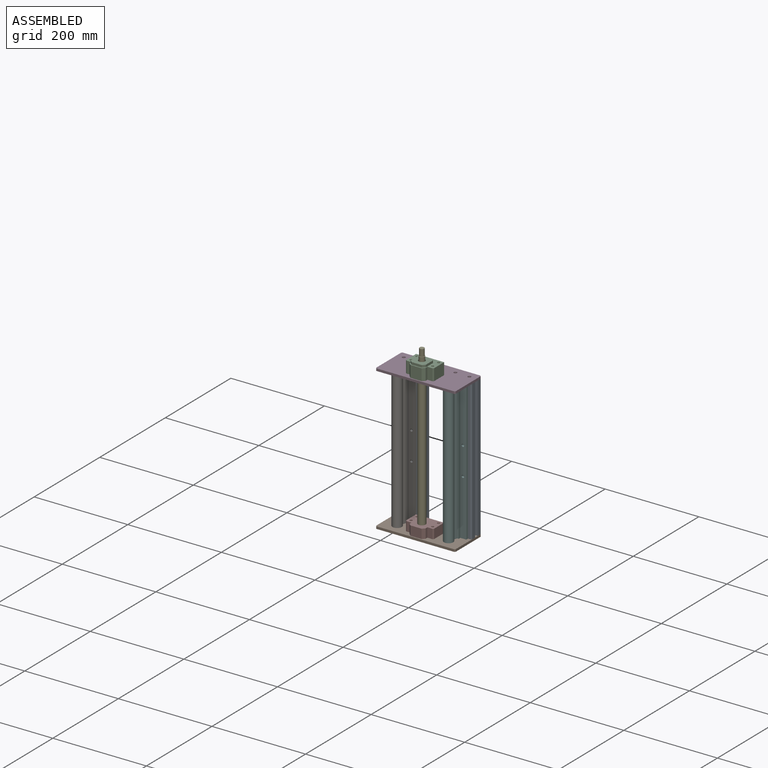
[diagram: assembled view]
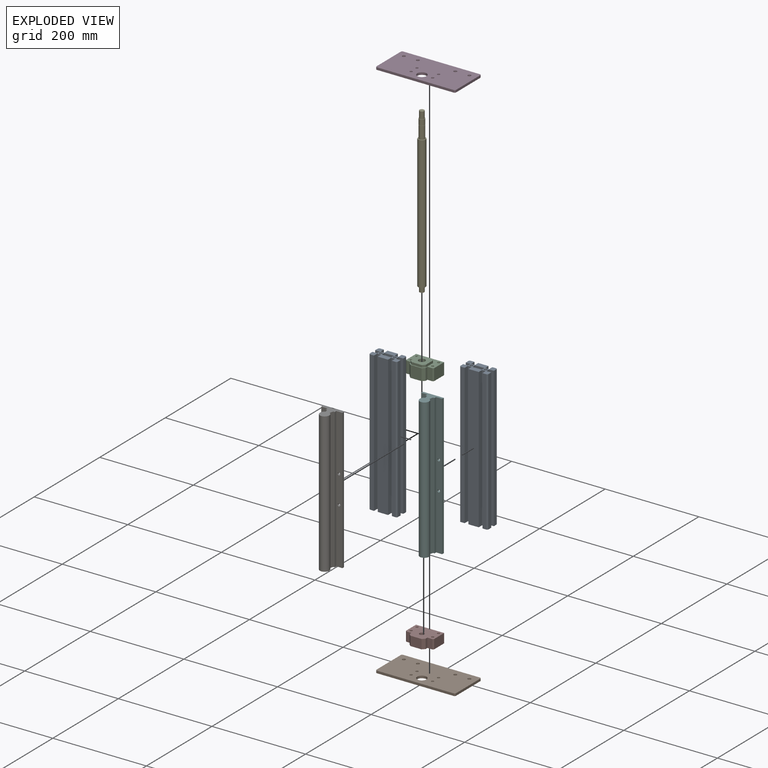
[diagram: exploded view]
GUIDED TOUR — MATED ASSEMBLY (Onshape document f1165145d76b4dcbf5827386, AutoMate assembly f1165145d76b4dcbf5827386_c7d8e668ed9fcab06a7a3335_a0ef34f5732d50700e5c29b1_default)

This assembly has 9 components, labeled P0..P8 below (a component is one placed occurrence of a part; the same part can appear more than once), held together by 7 mates. A mate is a constraint between two components; its type names the relative motion it leaves free:
  FASTENED — locks the two components together rigidly (no relative motion),
  REVOLUTE — leaves rotation about the listed axis free (a hinge).
Axis/direction vectors are unit vectors and 'through' points are millimeter coordinates, both in the assembly's world frame.

MATES
  1. FASTENED "Fest 5": P8 <-> P1, direction (0.000, 0.000, 1.000) through (70.00, 0.00, -150.00) mm
  2. FASTENED "Fest 7": P8 <-> P3, direction (0.000, 0.000, 1.000) through (70.00, 0.00, 150.00) mm
  3. FASTENED "Fest 3": P6 <-> P0, direction (0.000, 1.000, 0.000) through (-55.00, -15.00, 150.00) mm
  4. FASTENED "Fest 6": P7 <-> P1, direction (0.000, 0.000, -1.000) through (0.00, -45.00, -150.00) mm
  5. REVOLUTE "Drehen 1": P7 <-> P4, axis (0.000, 0.000, 1.000) through (0.00, -45.00, -130.00) mm
  6. FASTENED "Fest 4": P8 <-> P5, direction (0.000, -1.000, 0.000) through (55.00, -15.00, 150.00) mm
  7. FASTENED "Fest 8": P3 <-> P2, direction (0.000, 0.000, 1.000) through (23.00, -45.00, 155.00) mm

ASSEMBLY ORDER
  1. P2 — the base component [order verified]
  2. P3 [order verified]
  3. P8 [order verified]
  4. P0 [order verified]
  5. P4 [order verified]
  6. P5 [order verified]
  7. P6 [order verified]
  8. P7 [order verified]
  9. P1 [order verified]
(P4 verified with a relaxed clearance tolerance: the source model stores slight part interference there.)
Order-tag legend:
  [order verified] — this step's position reverses a verified removal order: the component was checked to insert without passing through the ones already placed.

Of the 9 components, 9 carry the full construction recipe — the FeatureScript program that regenerates the part's solid from scratch; the rest are supplied as boundary geometry only.
Each toured component is shown spotlighted twice — in the assembled view, then in the exploded view, where a leader line traces a displaced component back to its assembled socket (saturated green if recipe-attached, orange if geometry-only; every other component desaturated gray) — followed by its recipe or geometry summary and the mates that hold it.
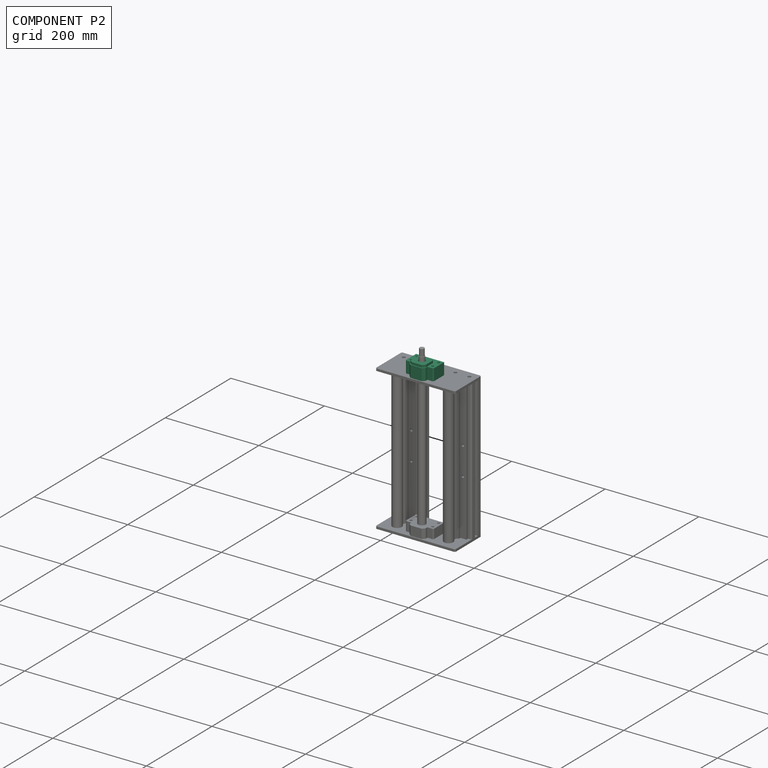
[diagram: component P2 — assembled]
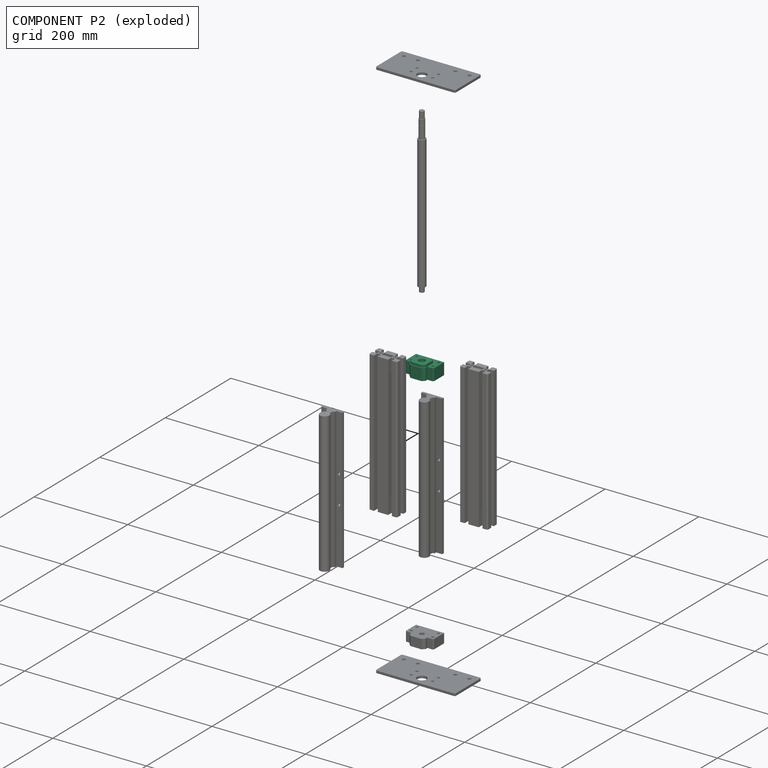
[diagram: component P2 — exploded]
COMPONENT P2 — recipe-attached (CADFS 00525021, mesh-verified: the recipe's output STEP matches this component's geometry to below the mesh-comparison resolution (tessellation chordal tolerance ~0.12 mm)).
Held by: FASTENED mate "Fest 8" to P3.
Construction recipe (FeatureScript — the CAD program that rebuilds this solid; sketch coordinates are in the units given by the * unit suffixes, e.g. mm):

FeatureScript 1511;
import(path : "onshape/std/geometry.fs", version : "1511.0");
import(path : "onshape/std/common.fs", version : "1511.0");
const mm = millimeter;
const VERTEX = EntityType.VERTEX;
const EDGE = EntityType.EDGE;
const FACE = EntityType.FACE;
const BODY = EntityType.BODY;
function v(x, y){return vector(x, y);}
function OD(order){return orderDisambiguation(order);}
function OSD(set){return originalSetDisambiguation(set);}
function TD(topology){return topologyDisambiguation(topology);}
function TDD(query){return trueDependencyDisambiguation(query);}
function sQuery(a, b, c) {return sketchEntityQuery(a, b, c);}

annotation { "Feature Type Name" : "Feature", "Feature Type Description" : "" }
export const myFeature = defineFeature(function(context is Context, id is Id, definition is map)
    precondition{}
    {
        {
            var Q0;
            Q0=qCreatedBy(makeId("Front.planeOp"),FACE);
            var sketch = newSketch(context, id + "F0", { "sketchPlane" : qUnion([Q0])});
            skLineSegment(sketch, "E0.bottom", {"start": v(17, 21.5) * mm, "end": v(-17, 21.5) * mm});
            skLineSegment(sketch, "E0.top", {"start": v(30, -21.5) * mm, "end": v(-30, -21.5) * mm});
            skLineSegment(sketch, "E0.left", {"start": v(30, 11) * mm, "end": v(30, -21.5) * mm});
            skLineSegment(sketch, "E0.right", {"start": v(-30, 11) * mm, "end": v(-30, -21.5) * mm});
            skPoint(sketch, "E0.middle", {"position": v(0, 0) * mm});
            skLineSegment(sketch, "E1", {"start": v(-17, 21.5) * mm, "end": v(-17, 11) * mm});
            skLineSegment(sketch, "E2", {"start": v(-17, 11) * mm, "end": v(-30, 11) * mm});
            skLineSegment(sketch, "E3", {"start": v(17, 21.5) * mm, "end": v(17, 11) * mm});
            skLineSegment(sketch, "E4", {"start": v(17, 11) * mm, "end": v(30, 11) * mm});
            skPoint(sketch, "E5.orphan", {"position": v(-30, 21.5) * mm});
            skPoint(sketch, "E6.orphan", {"position": v(30, 21.5) * mm});
            skSolve(sketch);
        }
        {
            var Q0;
            Q0 = qSketchRegion(id + "F0", true);
            extrude(context, id + "F1", {"entities" : qUnion([Q0]), "endBound" : BoundingType.SYMMETRIC, "depth" : 25 * mm, "offsetDistance" : 25 * mm});
        }
        {
            var Q0;
            Q0=makeQuery(id+"F1.opExtrude","CAP_FACE",FACE,{"disambiguationData":[OSD([sQuery(id+"F0.wireOp",EDGE,"E0.bottom"),sQuery(id+"F0.wireOp",EDGE,"E0.top"),sQuery(id+"F0.wireOp",EDGE,"E0.left"),sQuery(id+"F0.wireOp",EDGE,"E0.right"),sQuery(id+"F0.wireOp",EDGE,"E1"),sQuery(id+"F0.wireOp",EDGE,"E2"),sQuery(id+"F0.wireOp",EDGE,"E3"),sQuery(id+"F0.wireOp",EDGE,"E4")])],"isStart":false});
            var sketch = newSketch(context, id + "F2", { "sketchPlane" : qUnion([Q0])});
            skCircle(sketch, "E7", {"center": v(0, 3.5) * mm, "radius": 6 * mm});
            skSolve(sketch);
        }
        {
            var Q0;
            Q0 = qSketchRegion(id + "F2", true);
            extrude(context, id + "F3", {"entities" : qUnion([Q0]), "operationType" : NewBodyOperationType.REMOVE, "oppositeDirection" : true, "depth" : 25 * mm, "offsetDistance" : 25 * mm});
        }
        {
            var Q0;
            Q0=makeQuery(id+"F1.opExtrude","CAP_FACE",FACE,{"disambiguationData":[OSD([sQuery(id+"F0.wireOp",EDGE,"E0.bottom"),sQuery(id+"F0.wireOp",EDGE,"E0.top"),sQuery(id+"F0.wireOp",EDGE,"E0.left"),sQuery(id+"F0.wireOp",EDGE,"E0.right"),sQuery(id+"F0.wireOp",EDGE,"E1"),sQuery(id+"F0.wireOp",EDGE,"E2"),sQuery(id+"F0.wireOp",EDGE,"E3"),sQuery(id+"F0.wireOp",EDGE,"E4")])],"isStart":false});
            var sketch = newSketch(context, id + "F4", { "sketchPlane" : qUnion([Q0])});
            skCircle(sketch, "E8", {"center": v(0, 3.5) * mm, "radius": 13 * mm});
            skSolve(sketch);
        }
        {
            var Q0;
            Q0 = qSketchRegion(id + "F4", true);
            extrude(context, id + "F5", {"entities" : qUnion([Q0]), "operationType" : NewBodyOperationType.REMOVE, "oppositeDirection" : true, "depth" : 20 * mm, "offsetDistance" : 25 * mm});
        }
        {
            var Q0;
            Q0=makeQuery(id+"F1.opExtrude","CAP_FACE",FACE,{"disambiguationData":[OSD([sQuery(id+"F0.wireOp",EDGE,"E0.bottom"),sQuery(id+"F0.wireOp",EDGE,"E0.top"),sQuery(id+"F0.wireOp",EDGE,"E0.left"),sQuery(id+"F0.wireOp",EDGE,"E0.right"),sQuery(id+"F0.wireOp",EDGE,"E1"),sQuery(id+"F0.wireOp",EDGE,"E2"),sQuery(id+"F0.wireOp",EDGE,"E3"),sQuery(id+"F0.wireOp",EDGE,"E4")])],"isStart":false});
            var sketch = newSketch(context, id + "F6", { "sketchPlane" : qUnion([Q0])});
            skLineSegment(sketch, "E9.bottom", {"start": v(16, -12.5) * mm, "end": v(-16, -12.5) * mm});
            skLineSegment(sketch, "E9.top", {"start": v(16, 19.5) * mm, "end": v(-16, 19.5) * mm});
            skLineSegment(sketch, "E9.left", {"start": v(16, -12.5) * mm, "end": v(16, 19.5) * mm});
            skLineSegment(sketch, "E9.right", {"start": v(-16, -12.5) * mm, "end": v(-16, 19.5) * mm});
            skPoint(sketch, "E9.middle", {"position": v(0, 3.5) * mm});
            skSolve(sketch);
        }
        {
            var Q0;
            Q0 = qSketchRegion(id + "F6", true);
            extrude(context, id + "F7", {"entities" : qUnion([Q0]), "operationType" : NewBodyOperationType.ADD, "depth" : 5 * mm, "offsetDistance" : 25 * mm});
        }
        {
            var Q0;
            Q0=makeQuery(id+"F7.opExtrude","CAP_FACE",FACE,{"disambiguationData":[OSD([sQuery(id+"F6.wireOp",EDGE,"E9.bottom"),sQuery(id+"F6.wireOp",EDGE,"E9.top"),sQuery(id+"F6.wireOp",EDGE,"E9.left"),sQuery(id+"F6.wireOp",EDGE,"E9.right")])],"isStart":false});
            var sketch = newSketch(context, id + "F8", { "sketchPlane" : qUnion([Q0])});
            skCircle(sketch, "E10", {"center": v(0, 3.5) * mm, "radius": 7 * mm});
            skSolve(sketch);
        }
        {
            var Q0;
            Q0 = qSketchRegion(id + "F8", true);
            extrude(context, id + "F9", {"entities" : qUnion([Q0]), "operationType" : NewBodyOperationType.REMOVE, "oppositeDirection" : true, "depth" : 5 * mm, "offsetDistance" : 25 * mm});
        }
        {
            var Q0;
            Q0=makeQuery(id+"F7.opExtrude","SWEPT_EDGE",EDGE,{"disambiguationData":[OSD([sQuery(id+"F6.wireOp",EDGE,"E9.top"),sQuery(id+"F6.wireOp",EDGE,"E9.right")])]});
            var Q1;
            Q1=makeQuery(id+"F7.opExtrude","SWEPT_EDGE",EDGE,{"disambiguationData":[OSD([sQuery(id+"F6.wireOp",EDGE,"E9.bottom"),sQuery(id+"F6.wireOp",EDGE,"E9.right")])]});
            var Q2;
            Q2=makeQuery(id+"F7.opExtrude","SWEPT_EDGE",EDGE,{"disambiguationData":[OSD([sQuery(id+"F6.wireOp",EDGE,"E9.top"),sQuery(id+"F6.wireOp",EDGE,"E9.left")])]});
            var Q3;
            Q3=makeQuery(id+"F7.opExtrude","SWEPT_EDGE",EDGE,{"disambiguationData":[OSD([sQuery(id+"F6.wireOp",EDGE,"E9.bottom"),sQuery(id+"F6.wireOp",EDGE,"E9.left")])]});
            chamfer(context, id + "F10", {"entities" : qUnion([Q0, Q1, Q2, Q3]), "width" : 5 * mm, "tangentPropagation" : true});
        }
        {
            var Q0;
            Q0=makeQuery(id+"F1.opExtrude","SWEPT_EDGE",EDGE,{"disambiguationData":[OSD([sQuery(id+"F0.wireOp",EDGE,"E0.bottom"),sQuery(id+"F0.wireOp",EDGE,"E3")])]});
            var Q1;
            Q1=makeQuery(id+"F1.opExtrude","SWEPT_EDGE",EDGE,{"disambiguationData":[OSD([sQuery(id+"F0.wireOp",EDGE,"E0.bottom"),sQuery(id+"F0.wireOp",EDGE,"E1")])]});
            chamfer(context, id + "F11", {"entities" : qUnion([Q0, Q1]), "width" : 5 * mm, "tangentPropagation" : true});
        }
        {
            var Q0;
            Q0=makeQuery(id+"F1.opExtrude","CAP_FACE",FACE,{"disambiguationData":[OSD([sQuery(id+"F0.wireOp",EDGE,"E0.bottom"),sQuery(id+"F0.wireOp",EDGE,"E0.top"),sQuery(id+"F0.wireOp",EDGE,"E0.left"),sQuery(id+"F0.wireOp",EDGE,"E0.right"),sQuery(id+"F0.wireOp",EDGE,"E1"),sQuery(id+"F0.wireOp",EDGE,"E2"),sQuery(id+"F0.wireOp",EDGE,"E3"),sQuery(id+"F0.wireOp",EDGE,"E4")])],"isStart":true});
            var sketch = newSketch(context, id + "F12", { "sketchPlane" : qUnion([Q0])});
            skCircle(sketch, "E11", {"center": v(-23, 3.5) * mm, "radius": 2.75 * mm});
            skCircle(sketch, "E12", {"center": v(23, 3.5) * mm, "radius": 2.75 * mm});
            skCircle(sketch, "E13", {"center": v(23, -14.5) * mm, "radius": 2.75 * mm});
            skCircle(sketch, "E14", {"center": v(-23, -14.5) * mm, "radius": 2.75 * mm});
            skSolve(sketch);
        }
        {
            var Q0;
            Q0 = qSketchRegion(id + "F12", true);
            extrude(context, id + "F13", {"entities" : qUnion([Q0]), "operationType" : NewBodyOperationType.REMOVE, "oppositeDirection" : true, "depth" : 25 * mm, "offsetDistance" : 25 * mm});
        }
        {
            var Q0;
            Q0=makeQuery(id+"F1.opExtrude","SWEPT_EDGE",EDGE,{"disambiguationData":[OSD([sQuery(id+"F0.wireOp",EDGE,"E0.left"),sQuery(id+"F0.wireOp",EDGE,"E4")])]});
            var Q1;
            Q1=makeQuery(id+"F1.opExtrude","SWEPT_EDGE",EDGE,{"disambiguationData":[OSD([sQuery(id+"F0.wireOp",EDGE,"E0.right"),sQuery(id+"F0.wireOp",EDGE,"E2")])]});
            chamfer(context, id + "F14", {"entities" : qUnion([Q0, Q1]), "width" : 2 * mm, "tangentPropagation" : true});
        }
    });
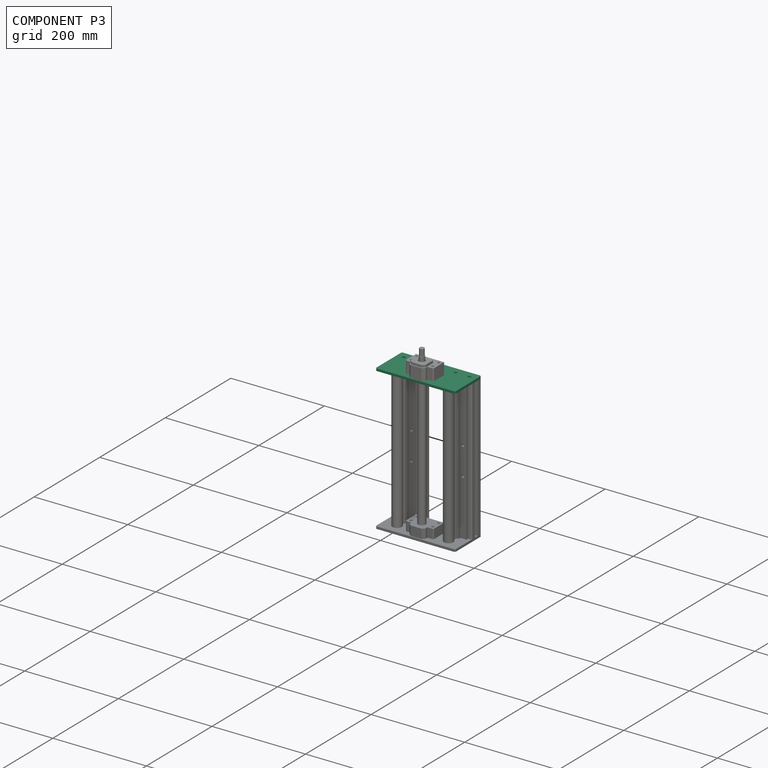
[diagram: component P3 — assembled]
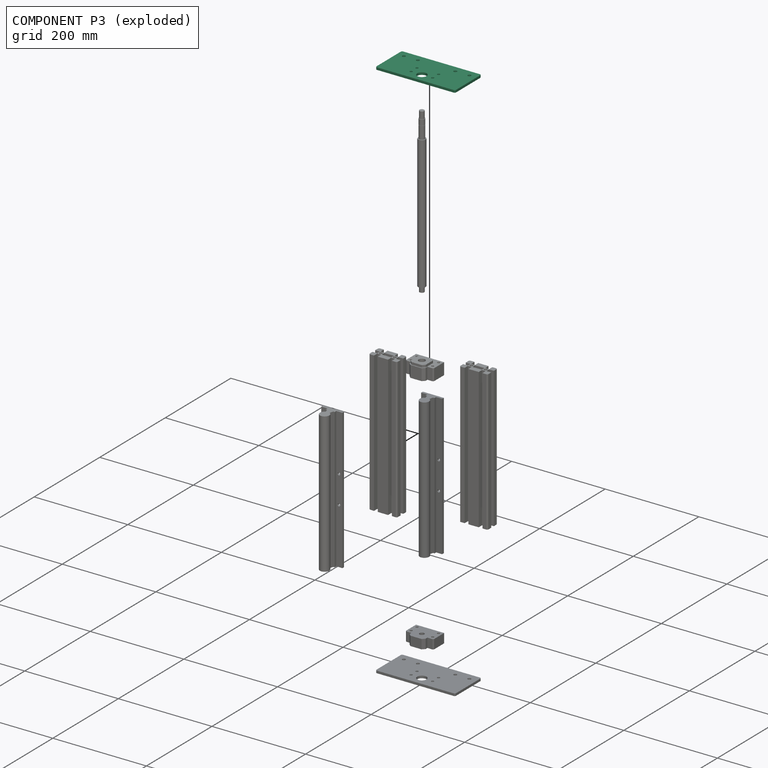
[diagram: component P3 — exploded]
COMPONENT P3 — same part as P1 (CADFS 00554988); its construction recipe is shown at P1.
Held by: FASTENED mate "Fest 7" to P8; FASTENED mate "Fest 8" to P2.
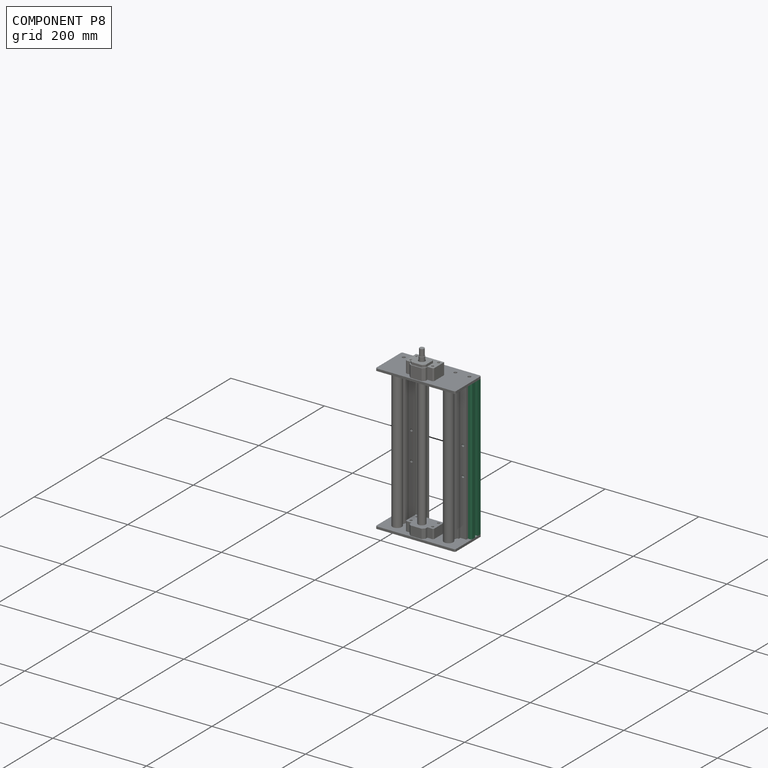
[diagram: component P8 — assembled]
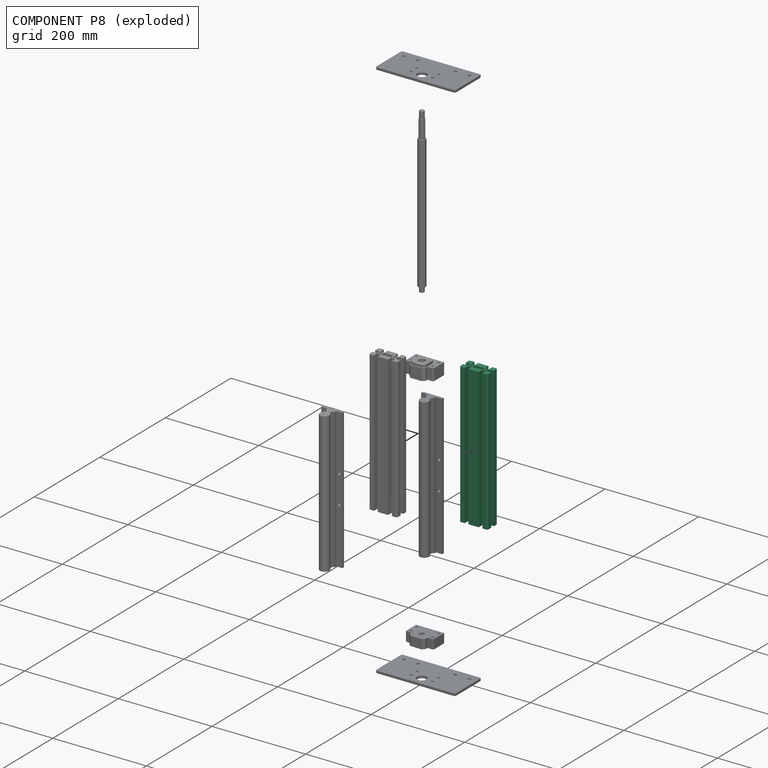
[diagram: component P8 — exploded]
COMPONENT P8 — same part as P0 (CADFS 00554987); its construction recipe is shown at P0.
Held by: FASTENED mate "Fest 5" to P1; FASTENED mate "Fest 7" to P3; FASTENED mate "Fest 4" to P5.
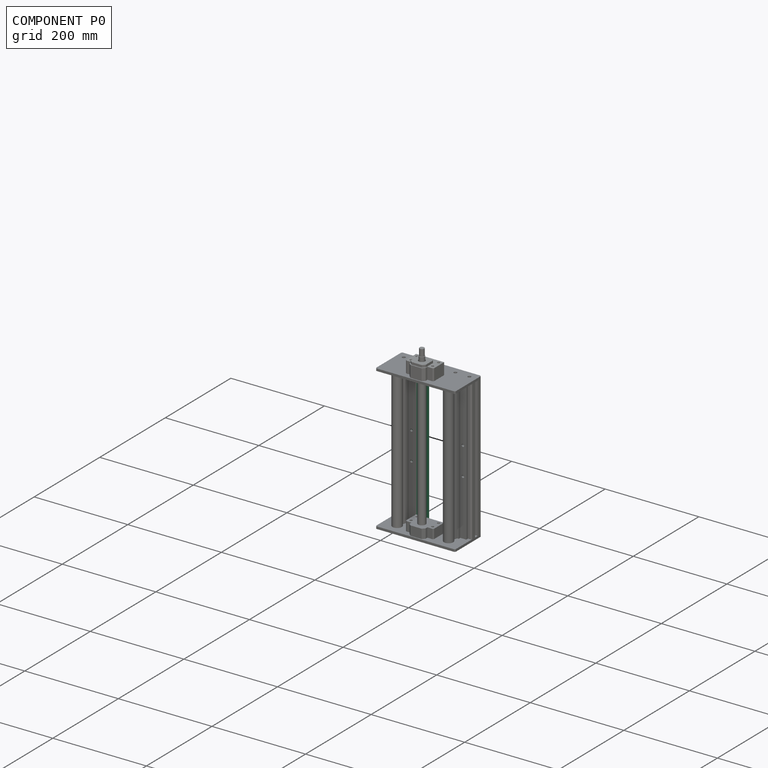
[diagram: component P0 — assembled]
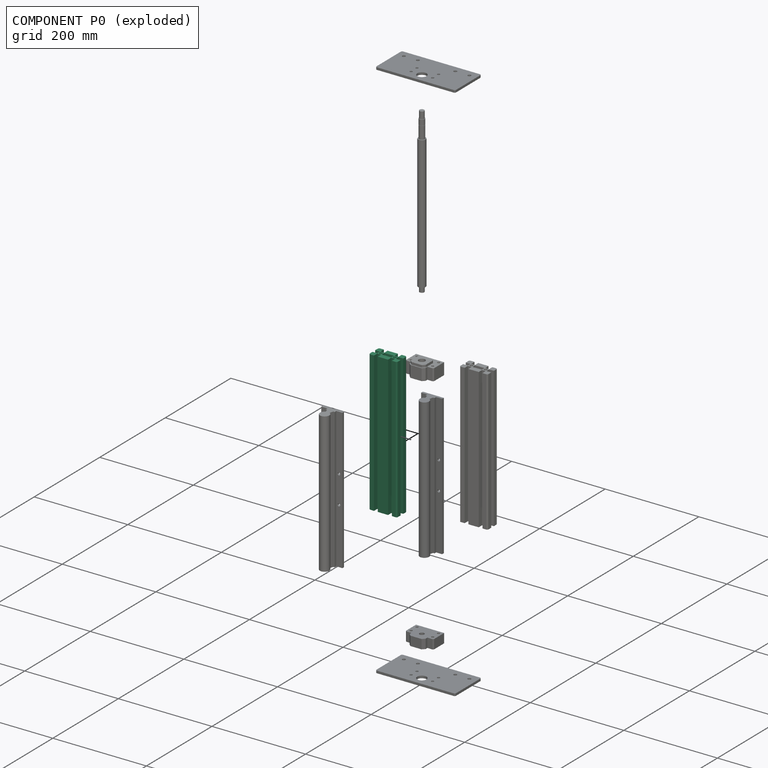
[diagram: component P0 — exploded]
COMPONENT P0 — recipe-attached (CADFS 00554987, mesh-verified: the recipe's output STEP matches this component's geometry to below the mesh-comparison resolution (tessellation chordal tolerance ~0.461 mm)).
Held by: FASTENED mate "Fest 3" to P6.
Construction recipe (FeatureScript — the CAD program that rebuilds this solid; sketch coordinates are in the units given by the * unit suffixes, e.g. mm):

FeatureScript 1511;
import(path : "onshape/std/geometry.fs", version : "1511.0");
import(path : "onshape/std/common.fs", version : "1511.0");
const mm = millimeter;
const VERTEX = EntityType.VERTEX;
const EDGE = EntityType.EDGE;
const FACE = EntityType.FACE;
const BODY = EntityType.BODY;
function v(x, y){return vector(x, y);}
function OD(order){return orderDisambiguation(order);}
function OSD(set){return originalSetDisambiguation(set);}
function TD(topology){return topologyDisambiguation(topology);}
function TDD(query){return trueDependencyDisambiguation(query);}
function sQuery(a, b, c) {return sketchEntityQuery(a, b, c);}

annotation { "Feature Type Name" : "Feature", "Feature Type Description" : "" }
export const myFeature = defineFeature(function(context is Context, id is Id, definition is map)
    precondition{}
    {
        {
            var Q0;
            Q0=qCreatedBy(makeId("Top.planeOp"),FACE);
            var sketch = newSketch(context, id + "F0", { "sketchPlane" : qUnion([Q0])});
            skLineSegment(sketch, "E0.bottom", {"start": v(30, 15) * mm, "end": v(19, 15) * mm});
            skLineSegment(sketch, "E0.top", {"start": v(30, -15) * mm, "end": v(19, -15) * mm});
            skLineSegment(sketch, "E0.left", {"start": v(30, 15) * mm, "end": v(30, 4) * mm});
            skLineSegment(sketch, "E0.right", {"start": v(-30, 15) * mm, "end": v(-30, 4) * mm});
            skPoint(sketch, "E0.middle", {"position": v(0, 0) * mm});
            skLineSegment(sketch, "E1.bottom", {"start": v(-30, 4) * mm, "end": v(-20, 4) * mm});
            skLineSegment(sketch, "E1.top", {"start": v(-30, -4) * mm, "end": v(-20, -4) * mm});
            skLineSegment(sketch, "E1.right", {"start": v(-20, 4) * mm, "end": v(-20, -4) * mm});
            skLineSegment(sketch, "E2.top", {"start": v(-19, 5) * mm, "end": v(-11, 5) * mm});
            skLineSegment(sketch, "E2.left", {"start": v(-19, 15) * mm, "end": v(-19, 5) * mm});
            skLineSegment(sketch, "E2.right", {"start": v(-11, 15) * mm, "end": v(-11, 5) * mm});
            skLineSegment(sketch, "E3.top", {"start": v(-19, -5) * mm, "end": v(-11, -5) * mm});
            skLineSegment(sketch, "E3.left", {"start": v(-19, -15) * mm, "end": v(-19, -5) * mm});
            skLineSegment(sketch, "E3.right", {"start": v(-11, -15) * mm, "end": v(-11, -5) * mm});
            skLineSegment(sketch, "E4.MirrorCS", {"start": v(11, 15) * mm, "end": v(11, 5) * mm});
            skLineSegment(sketch, "E5.MirrorCS", {"start": v(19, 5) * mm, "end": v(11, 5) * mm});
            skLineSegment(sketch, "E6.MirrorCS", {"start": v(19, 15) * mm, "end": v(19, 5) * mm});
            skLineSegment(sketch, "E7.MirrorCS", {"start": v(30, 4) * mm, "end": v(20, 4) * mm});
            skLineSegment(sketch, "E8.MirrorCS", {"start": v(20, 4) * mm, "end": v(20, -4) * mm});
            skLineSegment(sketch, "E9.MirrorCS", {"start": v(30, -4) * mm, "end": v(20, -4) * mm});
            skLineSegment(sketch, "E10.MirrorCS", {"start": v(11, -15) * mm, "end": v(11, -5) * mm});
            skLineSegment(sketch, "E11.MirrorCS", {"start": v(19, -5) * mm, "end": v(11, -5) * mm});
            skLineSegment(sketch, "E12.MirrorCS", {"start": v(19, -15) * mm, "end": v(19, -5) * mm});
            skLineSegment(sketch, "E13.trimOffspring", {"start": v(-30, -4) * mm, "end": v(-30, -15) * mm});
            skLineSegment(sketch, "E14.trimOffspring", {"start": v(-19, 15) * mm, "end": v(-30, 15) * mm});
            skLineSegment(sketch, "E15.trimOffspring", {"start": v(-19, -15) * mm, "end": v(-30, -15) * mm});
            skLineSegment(sketch, "E16.trimOffspring", {"start": v(11, -15) * mm, "end": v(-11, -15) * mm});
            skLineSegment(sketch, "E17.trimOffspring", {"start": v(30, -4) * mm, "end": v(30, -15) * mm});
            skLineSegment(sketch, "E18.trimOffspring", {"start": v(11, 15) * mm, "end": v(-11, 15) * mm});
            skSolve(sketch);
        }
        {
            var Q0;
            Q0 = qSketchRegion(id + "F0", true);
            extrude(context, id + "F1", {"entities" : qUnion([Q0]), "endBound" : BoundingType.SYMMETRIC, "depth" : 300 * mm, "offsetDistance" : 25 * mm});
        }
        {
            var Q0;
            Q0=makeQuery(id+"F1.opExtrude","CAP_FACE",FACE,{"disambiguationData":[OSD([sQuery(id+"F0.wireOp",EDGE,"E0.bottom"),sQuery(id+"F0.wireOp",EDGE,"E0.top"),sQuery(id+"F0.wireOp",EDGE,"E0.left"),sQuery(id+"F0.wireOp",EDGE,"E0.right"),sQuery(id+"F0.wireOp",EDGE,"E1.bottom"),sQuery(id+"F0.wireOp",EDGE,"E1.top"),sQuery(id+"F0.wireOp",EDGE,"E1.right"),sQuery(id+"F0.wireOp",EDGE,"E2.top"),sQuery(id+"F0.wireOp",EDGE,"E2.left"),sQuery(id+"F0.wireOp",EDGE,"E2.right"),sQuery(id+"F0.wireOp",EDGE,"E3.top"),sQuery(id+"F0.wireOp",EDGE,"E3.left"),sQuery(id+"F0.wireOp",EDGE,"E3.right"),sQuery(id+"F0.wireOp",EDGE,"E4.MirrorCS"),sQuery(id+"F0.wireOp",EDGE,"E5.MirrorCS"),sQuery(id+"F0.wireOp",EDGE,"E6.MirrorCS"),sQuery(id+"F0.wireOp",EDGE,"E7.MirrorCS"),sQuery(id+"F0.wireOp",EDGE,"E8.MirrorCS"),sQuery(id+"F0.wireOp",EDGE,"E9.MirrorCS"),sQuery(id+"F0.wireOp",EDGE,"E10.MirrorCS"),sQuery(id+"F0.wireOp",EDGE,"E11.MirrorCS"),sQuery(id+"F0.wireOp",EDGE,"E12.MirrorCS"),sQuery(id+"F0.wireOp",EDGE,"E13.trimOffspring"),sQuery(id+"F0.wireOp",EDGE,"E14.trimOffspring"),sQuery(id+"F0.wireOp",EDGE,"E15.trimOffspring"),sQuery(id+"F0.wireOp",EDGE,"E16.trimOffspring"),sQuery(id+"F0.wireOp",EDGE,"E17.trimOffspring"),sQuery(id+"F0.wireOp",EDGE,"E18.trimOffspring")])],"isStart":false});
            var sketch = newSketch(context, id + "F2", { "sketchPlane" : qUnion([Q0])});
            skLineSegment(sketch, "E19.bottom", {"start": v(10, 4) * mm, "end": v(-10, 4) * mm});
            skLineSegment(sketch, "E19.top", {"start": v(10, -4) * mm, "end": v(-10, -4) * mm});
            skLineSegment(sketch, "E19.left", {"start": v(10, 4) * mm, "end": v(10, -4) * mm});
            skLineSegment(sketch, "E19.right", {"start": v(-10, 4) * mm, "end": v(-10, -4) * mm});
            skPoint(sketch, "E19.middle", {"position": v(0, 0) * mm});
            skCircle(sketch, "E20", {"center": v(-15, 0) * mm, "radius": 3.4 * mm});
            skCircle(sketch, "E21", {"center": v(15, 0) * mm, "radius": 3.4 * mm});
            skSolve(sketch);
        }
        {
            var Q0;
            Q0 = qSketchRegion(id + "F2", true);
            extrude(context, id + "F3", {"entities" : qUnion([Q0]), "operationType" : NewBodyOperationType.REMOVE, "oppositeDirection" : true, "depth" : 300 * mm, "offsetDistance" : 25 * mm});
        }
        {
            var Q0;
            Q0=makeQuery(id+"F1.opExtrude","SWEPT_EDGE",EDGE,{"disambiguationData":[OSD([sQuery(id+"F0.wireOp",EDGE,"E0.top"),sQuery(id+"F0.wireOp",EDGE,"E17.trimOffspring")])]});
            var Q1;
            Q1=makeQuery(id+"F1.opExtrude","SWEPT_EDGE",EDGE,{"disambiguationData":[OSD([sQuery(id+"F0.wireOp",EDGE,"E0.bottom"),sQuery(id+"F0.wireOp",EDGE,"E0.left")])]});
            var Q2;
            Q2=makeQuery(id+"F1.opExtrude","SWEPT_EDGE",EDGE,{"disambiguationData":[OSD([sQuery(id+"F0.wireOp",EDGE,"E13.trimOffspring"),sQuery(id+"F0.wireOp",EDGE,"E15.trimOffspring")])]});
            var Q3;
            Q3=makeQuery(id+"F1.opExtrude","SWEPT_EDGE",EDGE,{"disambiguationData":[OSD([sQuery(id+"F0.wireOp",EDGE,"E0.right"),sQuery(id+"F0.wireOp",EDGE,"E14.trimOffspring")])]});
            fillet(context, id + "F4", {"entities" : qUnion([Q0, Q1, Q2, Q3]), "radius" : 3 * mm, "tangentPropagation" : true, "allowEdgeOverflow" : false});
        }
    });
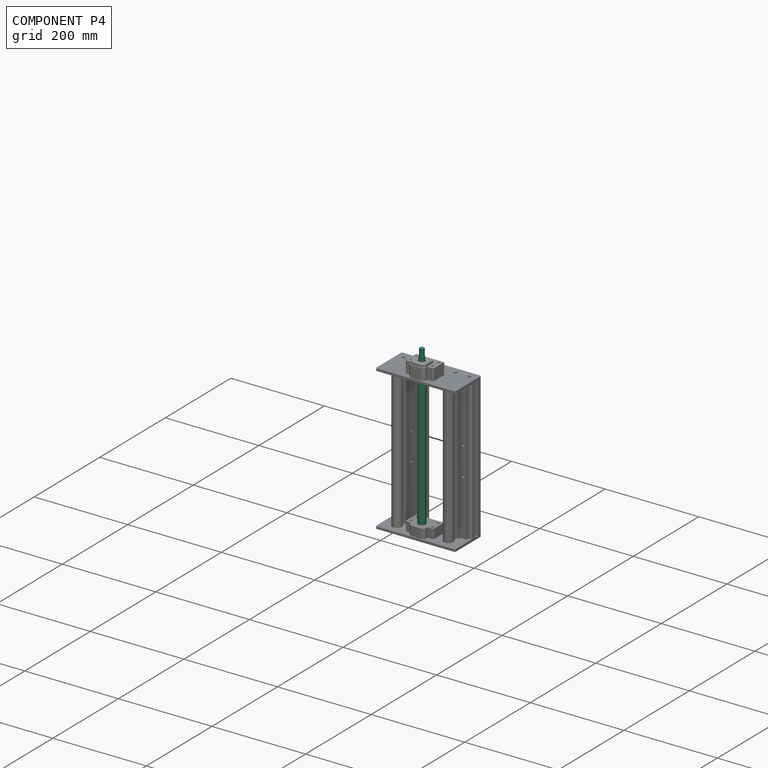
[diagram: component P4 — assembled]
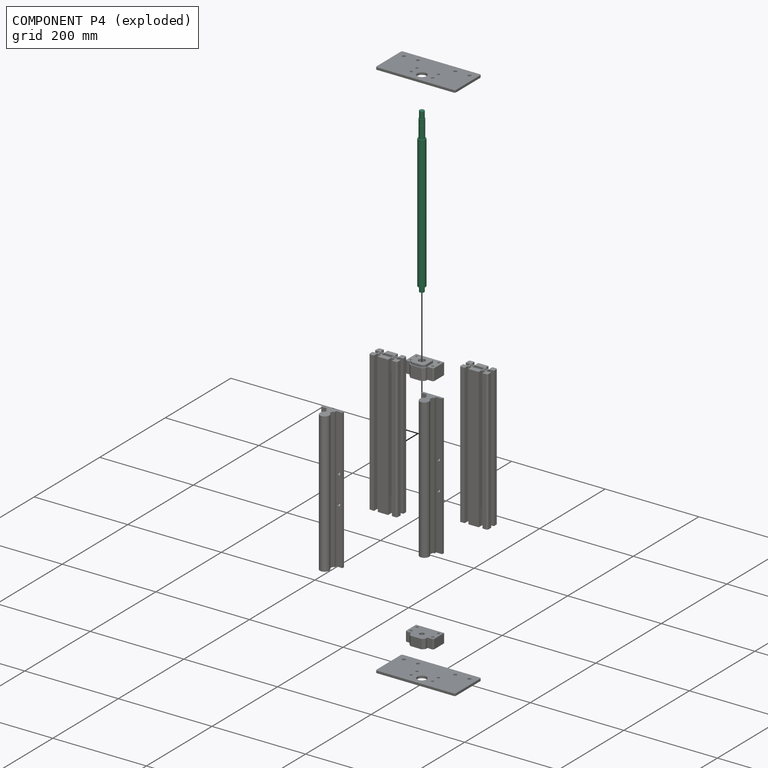
[diagram: component P4 — exploded]
COMPONENT P4 — recipe-attached (CADFS 00554990, mesh-verified: the recipe's output STEP matches this component's geometry to below the mesh-comparison resolution (tessellation chordal tolerance ~0.526 mm)).
Held by: REVOLUTE mate "Drehen 1" to P7.
Construction recipe (FeatureScript — the CAD program that rebuilds this solid; sketch coordinates are in the units given by the * unit suffixes, e.g. mm):

FeatureScript 1511;
import(path : "onshape/std/geometry.fs", version : "1511.0");
import(path : "onshape/std/common.fs", version : "1511.0");
const mm = millimeter;
const VERTEX = EntityType.VERTEX;
const EDGE = EntityType.EDGE;
const FACE = EntityType.FACE;
const BODY = EntityType.BODY;
function v(x, y){return vector(x, y);}
function OD(order){return orderDisambiguation(order);}
function OSD(set){return originalSetDisambiguation(set);}
function TD(topology){return topologyDisambiguation(topology);}
function TDD(query){return trueDependencyDisambiguation(query);}
function sQuery(a, b, c) {return sketchEntityQuery(a, b, c);}

annotation { "Feature Type Name" : "Feature", "Feature Type Description" : "" }
export const myFeature = defineFeature(function(context is Context, id is Id, definition is map)
    precondition{}
    {
        {
            var Q0;
            Q0=qCreatedBy(makeId("Front.planeOp"),FACE);
            var sketch = newSketch(context, id + "F0", { "sketchPlane" : qUnion([Q0])});
            skLineSegment(sketch, "E0.bottom", {"start": v(-142.5, 0) * mm, "end": v(142.5, 0) * mm});
            skLineSegment(sketch, "E0.top", {"start": v(-142.5, 8) * mm, "end": v(142.5, 8) * mm});
            skLineSegment(sketch, "E0.left", {"start": v(-142.5, 0) * mm, "end": v(-142.5, 8) * mm});
            skLineSegment(sketch, "E0.right", {"start": v(142.5, 0) * mm, "end": v(142.5, 8) * mm});
            skLineSegment(sketch, "E1.bottom", {"start": v(142.5, 5) * mm, "end": v(153.5, 5) * mm});
            skLineSegment(sketch, "E1.top", {"start": v(142.5, 0) * mm, "end": v(153.5, 0) * mm});
            skLineSegment(sketch, "E1.left", {"start": v(142.5, 5) * mm, "end": v(142.5, 0) * mm});
            skLineSegment(sketch, "E1.right", {"start": v(153.5, 5) * mm, "end": v(153.5, 0) * mm});
            skLineSegment(sketch, "E2.bottom", {"start": v(-142.5, 6) * mm, "end": v(-169, 6) * mm});
            skLineSegment(sketch, "E2.top", {"start": v(-142.5, 0) * mm, "end": v(-181.5, 0) * mm});
            skLineSegment(sketch, "E2.left", {"start": v(-142.5, 6) * mm, "end": v(-142.5, 0) * mm});
            skLineSegment(sketch, "E2.right", {"start": v(-181.5, 6) * mm, "end": v(-181.5, 0) * mm});
            skLineSegment(sketch, "E3.bottom", {"start": v(-181.5, 5) * mm, "end": v(-196.5, 5) * mm});
            skLineSegment(sketch, "E3.top", {"start": v(-181.5, 0) * mm, "end": v(-196.5, 0) * mm});
            skLineSegment(sketch, "E3.left", {"start": v(-181.5, 5) * mm, "end": v(-181.5, 0) * mm});
            skLineSegment(sketch, "E3.right", {"start": v(-196.5, 5) * mm, "end": v(-196.5, 0) * mm});
            skLineSegment(sketch, "E4", {"start": v(-169.5, 6) * mm, "end": v(-169.5, 5.5) * mm});
            skLineSegment(sketch, "E5", {"start": v(-169.5, 5.5) * mm, "end": v(-169, 5.5) * mm});
            skLineSegment(sketch, "E6", {"start": v(-169, 5.5) * mm, "end": v(-169, 6) * mm});
            skLineSegment(sketch, "E7.trimOffspring", {"start": v(-169.5, 6) * mm, "end": v(-181.5, 6) * mm});
            skSolve(sketch);
        }
        {
            var Q0;
            Q0 = qSketchRegion(id + "F0", true);
            var Q1;
            Q1=sQuery(id+"F0.wireOp",EDGE,"E0.bottom");
            revolve(context, id + "F1", {"entities" : qUnion([Q0]), "axis" : qUnion([Q1]), "revolveType" : RevolveType.FULL});
        }
    });
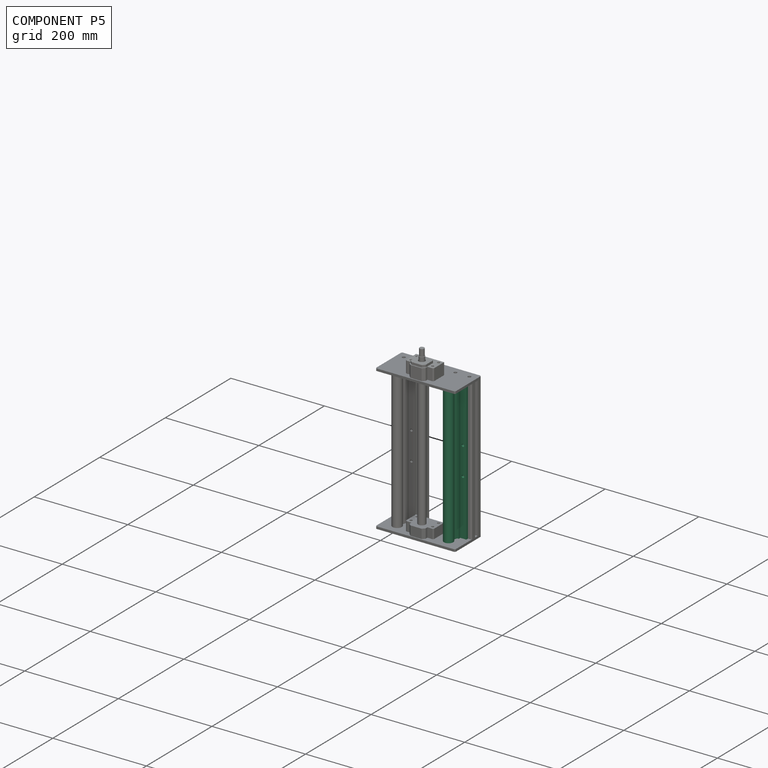
[diagram: component P5 — assembled]
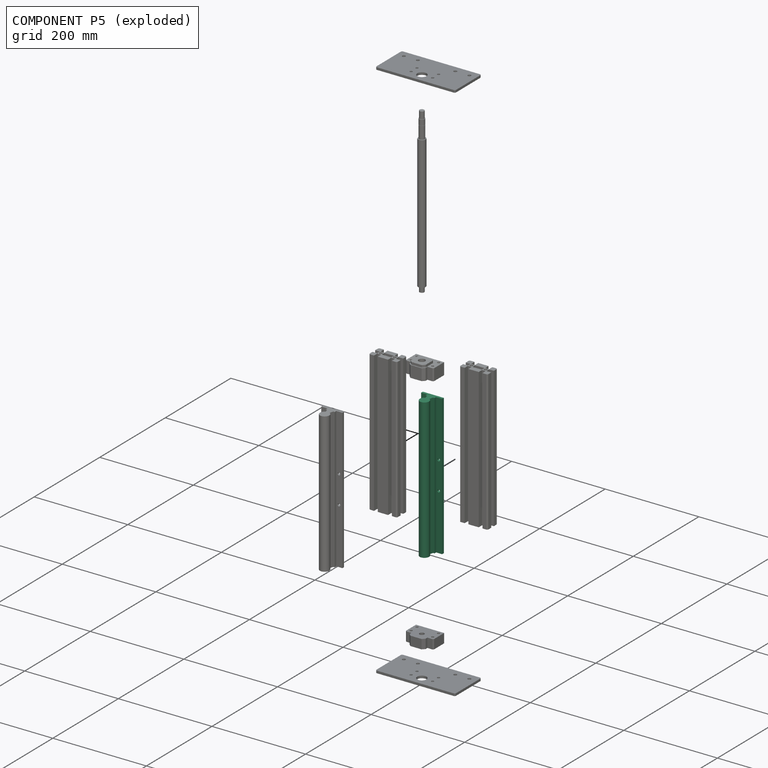
[diagram: component P5 — exploded]
COMPONENT P5 — recipe-attached (CADFS 00525016, mesh-verified: the recipe's output STEP matches this component's geometry to below the mesh-comparison resolution (tessellation chordal tolerance ~0.458 mm)).
Held by: FASTENED mate "Fest 4" to P8.
Construction recipe (FeatureScript — the CAD program that rebuilds this solid; sketch coordinates are in the units given by the * unit suffixes, e.g. mm):

FeatureScript 1511;
import(path : "onshape/std/geometry.fs", version : "1511.0");
import(path : "onshape/std/common.fs", version : "1511.0");
const mm = millimeter;
const VERTEX = EntityType.VERTEX;
const EDGE = EntityType.EDGE;
const FACE = EntityType.FACE;
const BODY = EntityType.BODY;
function v(x, y){return vector(x, y);}
function OD(order){return orderDisambiguation(order);}
function OSD(set){return originalSetDisambiguation(set);}
function TD(topology){return topologyDisambiguation(topology);}
function TDD(query){return trueDependencyDisambiguation(query);}
function sQuery(a, b, c) {return sketchEntityQuery(a, b, c);}

annotation { "Feature Type Name" : "Feature", "Feature Type Description" : "" }
export const myFeature = defineFeature(function(context is Context, id is Id, definition is map)
    precondition{}
    {
        {
            var Q0;
            Q0=qCreatedBy(makeId("Front.planeOp"),FACE);
            var sketch = newSketch(context, id + "F0", { "sketchPlane" : qUnion([Q0])});
            skLineSegment(sketch, "E0.bottom", {"start": v(0, 22.5) * mm, "end": v(5, 22.5) * mm});
            skLineSegment(sketch, "E0.top", {"start": v(0, -22.5) * mm, "end": v(5, -22.5) * mm});
            skLineSegment(sketch, "E0.left", {"start": v(0, 22.5) * mm, "end": v(0, -22.5) * mm});
            skLineSegment(sketch, "E0.right", {"start": v(5, 22.5) * mm, "end": v(5, 9.5) * mm});
            skLineSegment(sketch, "E1.bottom", {"start": v(5, 9.5) * mm, "end": v(10, 9.5) * mm});
            skLineSegment(sketch, "E1.top", {"start": v(5, -9.5) * mm, "end": v(10, -9.5) * mm});
            skLineSegment(sketch, "E1.right", {"start": v(10, 9.5) * mm, "end": v(10, 6.38) * mm});
            skLineSegment(sketch, "E2", {"start": v(10, 6.38) * mm, "end": v(17.89, 4.12) * mm});
            skLineSegment(sketch, "E3", {"start": v(17.92, -4.2) * mm, "end": v(10, -6.5) * mm});
            skArc(sketch, "E4", {"start": v(17.92, -4.2) * mm, "mid": v(37, 0.04) * mm, "end": v(17.89, 4.12) * mm});
            skLineSegment(sketch, "E5.trimOffspring", {"start": v(5, -9.5) * mm, "end": v(5, -22.5) * mm});
            skLineSegment(sketch, "E6.trimOffspring", {"start": v(10, -6.5) * mm, "end": v(10, -9.5) * mm});
            skPoint(sketch, "E7.orphan", {"position": v(32.3, 0) * mm});
            skSolve(sketch);
        }
        {
            var Q0;
            Q0=qSketchRegion(id+"F0",true);
            extrude(context, id + "F1", {"entities" : qUnion([Q0]), "endBound" : BoundingType.SYMMETRIC, "depth" : 300 * mm, "offsetDistance" : 25 * mm});
        }
        {
            var Q0;
            Q0=makeQuery(id+"F1.opExtrude","SWEPT_FACE",FACE,{"disambiguationData":[OSD([sQuery(id+"F0.wireOp",EDGE,"E0.left")])]});
            var sketch = newSketch(context, id + "F2", { "sketchPlane" : qUnion([Q0])});
            skCircle(sketch, "E8", {"center": v(30, 15) * mm, "radius": 2.75 * mm});
            skCircle(sketch, "E9", {"center": v(30, -15) * mm, "radius": 2.75 * mm});
            skCircle(sketch, "E10", {"center": v(-30, -15) * mm, "radius": 2.75 * mm});
            skCircle(sketch, "E11", {"center": v(-30, 15) * mm, "radius": 2.75 * mm});
            skSolve(sketch);
        }
        {
            var Q0;
            Q0=qSketchRegion(id+"F2",true);
            extrude(context, id + "F3", {"entities" : qUnion([Q0]), "operationType" : NewBodyOperationType.REMOVE, "oppositeDirection" : true, "depth" : 5 * mm, "offsetDistance" : 25 * mm});
        }
    });
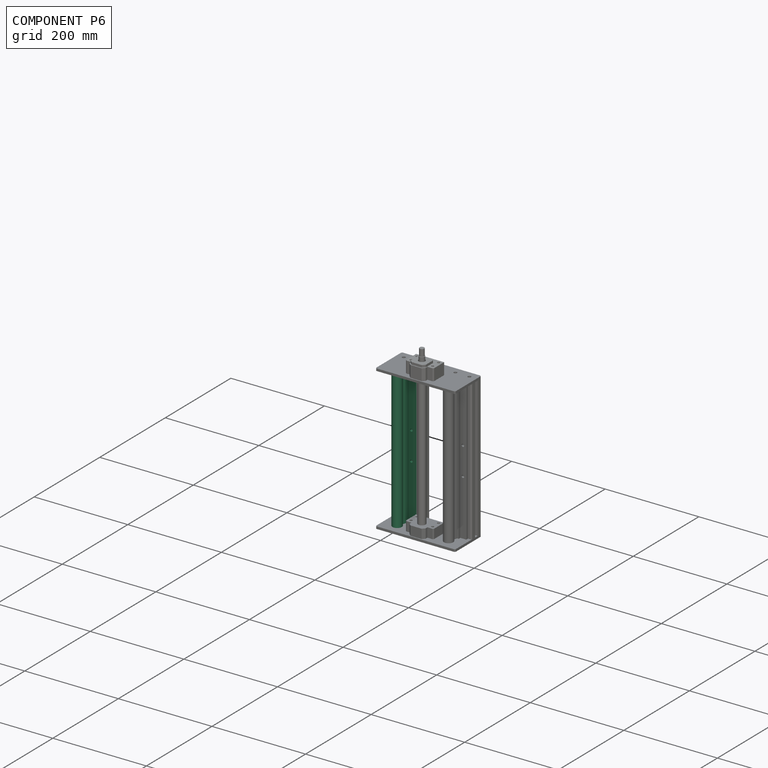
[diagram: component P6 — assembled]
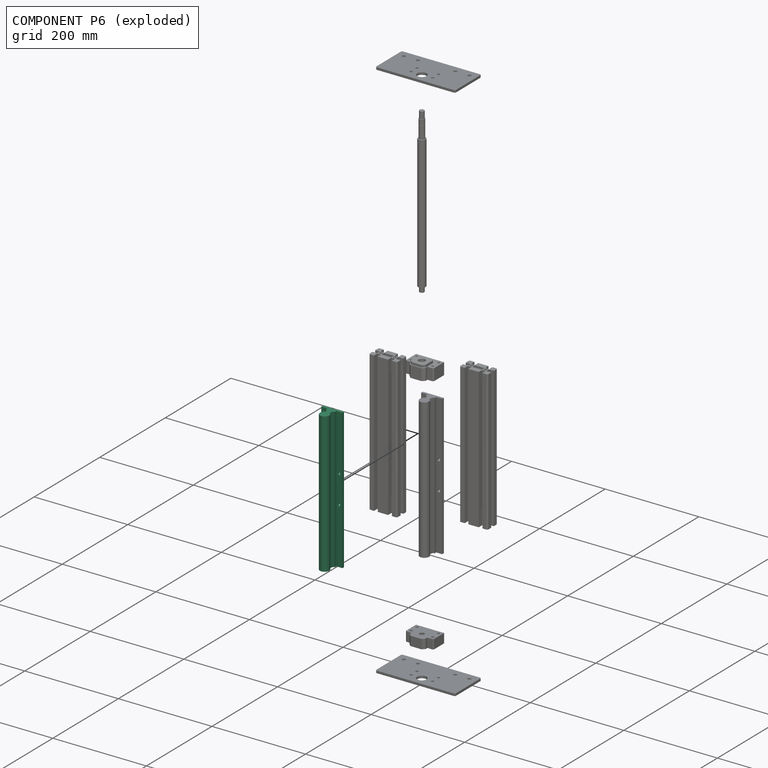
[diagram: component P6 — exploded]
COMPONENT P6 — same part as P5 (CADFS 00525016); its construction recipe is shown at P5.
Held by: FASTENED mate "Fest 3" to P0.
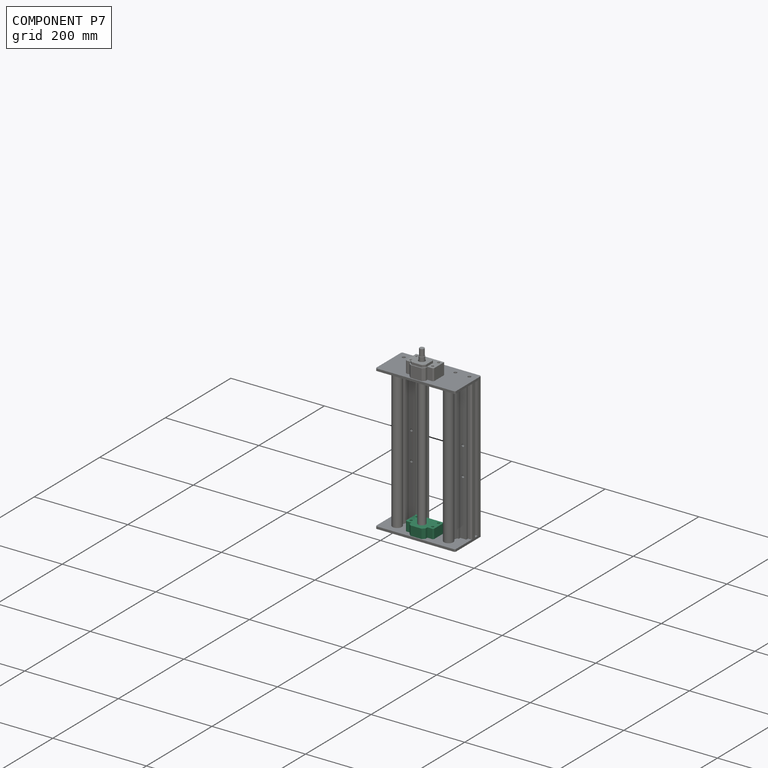
[diagram: component P7 — assembled]
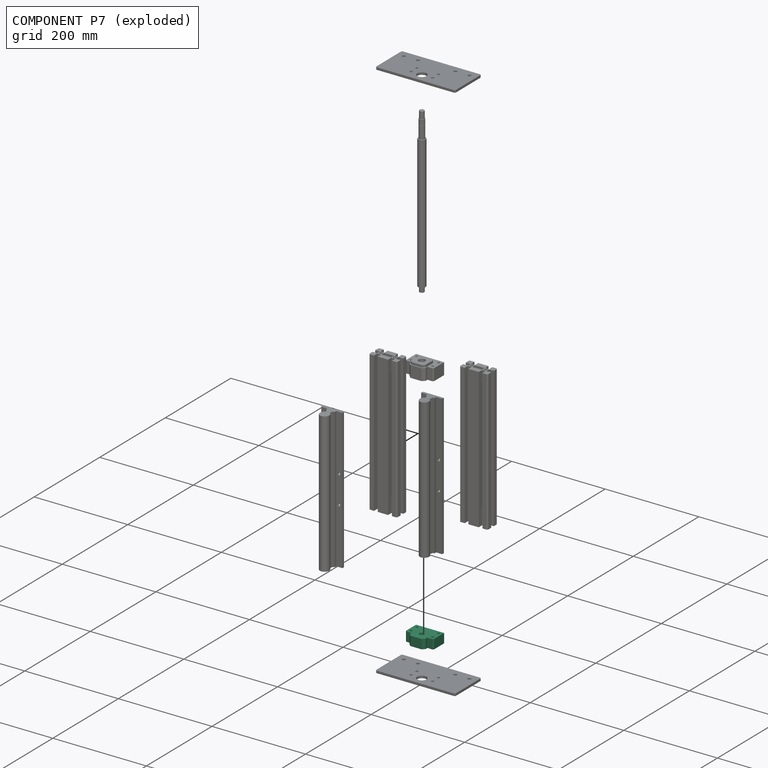
[diagram: component P7 — exploded]
COMPONENT P7 — recipe-attached (CADFS 00525020, mesh-verified: the recipe's output STEP matches this component's geometry to below the mesh-comparison resolution (tessellation chordal tolerance ~0.115 mm)).
Held by: FASTENED mate "Fest 6" to P1; REVOLUTE mate "Drehen 1" to P4.
Construction recipe (FeatureScript — the CAD program that rebuilds this solid; sketch coordinates are in the units given by the * unit suffixes, e.g. mm):

FeatureScript 1511;
import(path : "onshape/std/geometry.fs", version : "1511.0");
import(path : "onshape/std/common.fs", version : "1511.0");
const mm = millimeter;
const VERTEX = EntityType.VERTEX;
const EDGE = EntityType.EDGE;
const FACE = EntityType.FACE;
const BODY = EntityType.BODY;
function v(x, y){return vector(x, y);}
function OD(order){return orderDisambiguation(order);}
function OSD(set){return originalSetDisambiguation(set);}
function TD(topology){return topologyDisambiguation(topology);}
function TDD(query){return trueDependencyDisambiguation(query);}
function sQuery(a, b, c) {return sketchEntityQuery(a, b, c);}

annotation { "Feature Type Name" : "Feature", "Feature Type Description" : "" }
export const myFeature = defineFeature(function(context is Context, id is Id, definition is map)
    precondition{}
    {
        {
            var Q0;
            Q0=qCreatedBy(makeId("Front.planeOp"),FACE);
            var sketch = newSketch(context, id + "F0", { "sketchPlane" : qUnion([Q0])});
            skLineSegment(sketch, "E0.bottom", {"start": v(17, 21.5) * mm, "end": v(-17, 21.5) * mm});
            skLineSegment(sketch, "E0.top", {"start": v(30, -21.5) * mm, "end": v(-30, -21.5) * mm});
            skLineSegment(sketch, "E0.left", {"start": v(30, 11) * mm, "end": v(30, -21.5) * mm});
            skLineSegment(sketch, "E0.right", {"start": v(-30, 11) * mm, "end": v(-30, -21.5) * mm});
            skPoint(sketch, "E0.middle", {"position": v(0, 0) * mm});
            skLineSegment(sketch, "E1", {"start": v(-17, 21.5) * mm, "end": v(-17, 11) * mm});
            skLineSegment(sketch, "E2", {"start": v(-17, 11) * mm, "end": v(-30, 11) * mm});
            skLineSegment(sketch, "E3", {"start": v(17, 21.5) * mm, "end": v(17, 11) * mm});
            skLineSegment(sketch, "E4", {"start": v(17, 11) * mm, "end": v(30, 11) * mm});
            skPoint(sketch, "E5.orphan", {"position": v(-30, 21.5) * mm});
            skPoint(sketch, "E6.orphan", {"position": v(30, 21.5) * mm});
            skPoint(sketch, "E7.center.orphan", {"position": v(0, 3.5) * mm});
            skPoint(sketch, "E8.center.orphan", {"position": v(23, 3.5) * mm});
            skPoint(sketch, "E9.center.orphan", {"position": v(23, -14.5) * mm});
            skPoint(sketch, "E10.center.orphan", {"position": v(-23, 3.5) * mm});
            skPoint(sketch, "E11.center.orphan", {"position": v(-23, -14.14) * mm});
            skSolve(sketch);
        }
        {
            var Q0;
            Q0 = qSketchRegion(id + "F0", true);
            extrude(context, id + "F1", {"entities" : qUnion([Q0]), "endBound" : BoundingType.SYMMETRIC, "depth" : 20 * mm, "offsetDistance" : 25 * mm});
        }
        {
            var Q0;
            Q0=makeQuery(id+"F1.opExtrude","CAP_FACE",FACE,{"disambiguationData":[OSD([sQuery(id+"F0.wireOp",EDGE,"E0.bottom"),sQuery(id+"F0.wireOp",EDGE,"E0.top"),sQuery(id+"F0.wireOp",EDGE,"E0.left"),sQuery(id+"F0.wireOp",EDGE,"E0.right"),sQuery(id+"F0.wireOp",EDGE,"E1"),sQuery(id+"F0.wireOp",EDGE,"E2"),sQuery(id+"F0.wireOp",EDGE,"E3"),sQuery(id+"F0.wireOp",EDGE,"E4")])],"isStart":false});
            var sketch = newSketch(context, id + "F2", { "sketchPlane" : qUnion([Q0])});
            skCircle(sketch, "E12", {"center": v(0, 3.5) * mm, "radius": 5 * mm});
            skCircle(sketch, "E13", {"center": v(23, 3.5) * mm, "radius": 2.75 * mm});
            skCircle(sketch, "E14", {"center": v(23, -14.5) * mm, "radius": 2.75 * mm});
            skCircle(sketch, "E15", {"center": v(-23, -14.5) * mm, "radius": 2.75 * mm});
            skCircle(sketch, "E16", {"center": v(-23, 3.5) * mm, "radius": 2.75 * mm});
            skSolve(sketch);
        }
        {
            var Q0;
            Q0 = qSketchRegion(id + "F2", true);
            extrude(context, id + "F3", {"entities" : qUnion([Q0]), "operationType" : NewBodyOperationType.REMOVE, "oppositeDirection" : true, "depth" : 20 * mm, "offsetDistance" : 25 * mm});
        }
        {
            var Q0;
            Q0=makeQuery(id+"F1.opExtrude","SWEPT_EDGE",EDGE,{"disambiguationData":[OSD([sQuery(id+"F0.wireOp",EDGE,"E0.bottom"),sQuery(id+"F0.wireOp",EDGE,"E1")])]});
            var Q1;
            Q1=makeQuery(id+"F1.opExtrude","SWEPT_EDGE",EDGE,{"disambiguationData":[OSD([sQuery(id+"F0.wireOp",EDGE,"E0.bottom"),sQuery(id+"F0.wireOp",EDGE,"E3")])]});
            chamfer(context, id + "F4", {"entities" : qUnion([Q0, Q1]), "width" : 5 * mm, "tangentPropagation" : true});
        }
        {
            var Q0;
            Q0=makeQuery(id+"F1.opExtrude","SWEPT_EDGE",EDGE,{"disambiguationData":[OSD([sQuery(id+"F0.wireOp",EDGE,"E0.left"),sQuery(id+"F0.wireOp",EDGE,"E4")])]});
            var Q1;
            Q1=makeQuery(id+"F1.opExtrude","SWEPT_EDGE",EDGE,{"disambiguationData":[OSD([sQuery(id+"F0.wireOp",EDGE,"E0.right"),sQuery(id+"F0.wireOp",EDGE,"E2")])]});
            chamfer(context, id + "F5", {"entities" : qUnion([Q0, Q1]), "width" : 2 * mm, "tangentPropagation" : true});
        }
        {
            var Q0;
            Q0=makeQuery(id+"F1.opExtrude","CAP_FACE",FACE,{"disambiguationData":[OSD([sQuery(id+"F0.wireOp",EDGE,"E0.bottom"),sQuery(id+"F0.wireOp",EDGE,"E0.top"),sQuery(id+"F0.wireOp",EDGE,"E0.left"),sQuery(id+"F0.wireOp",EDGE,"E0.right"),sQuery(id+"F0.wireOp",EDGE,"E1"),sQuery(id+"F0.wireOp",EDGE,"E2"),sQuery(id+"F0.wireOp",EDGE,"E3"),sQuery(id+"F0.wireOp",EDGE,"E4")])],"isStart":true});
            var sketch = newSketch(context, id + "F6", { "sketchPlane" : qUnion([Q0])});
            skCircle(sketch, "E17", {"center": v(0, 3.5) * mm, "radius": 10 * mm});
            skSolve(sketch);
        }
        {
            var Q0;
            Q0 = qSketchRegion(id + "F6", true);
            extrude(context, id + "F7", {"entities" : qUnion([Q0]), "operationType" : NewBodyOperationType.REMOVE, "oppositeDirection" : true, "depth" : 11 * mm, "offsetDistance" : 25 * mm});
        }
    });
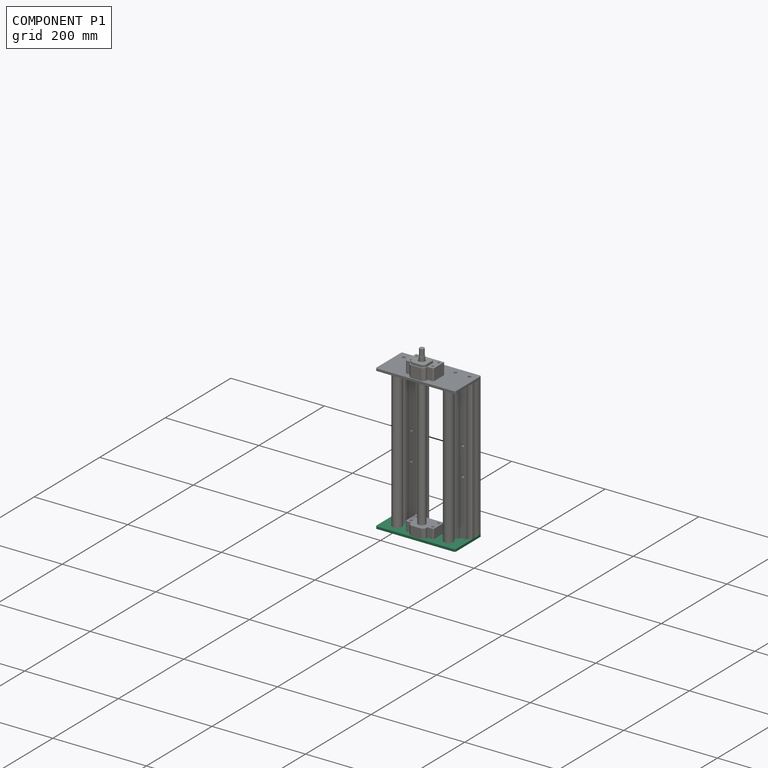
[diagram: component P1 — assembled]
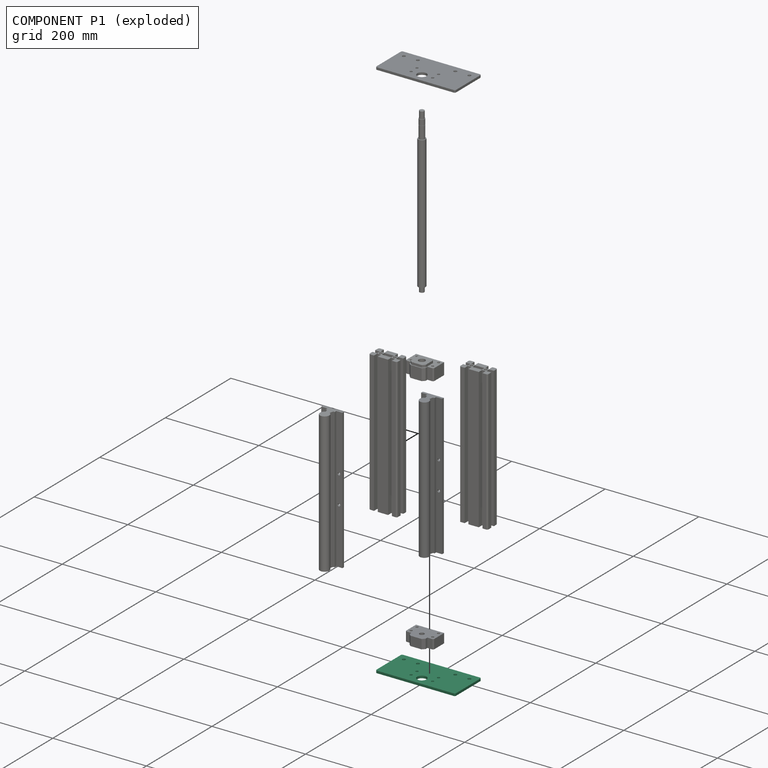
[diagram: component P1 — exploded]
COMPONENT P1 — recipe-attached (CADFS 00554988, mesh-verified: the recipe's output STEP matches this component's geometry to below the mesh-comparison resolution (tessellation chordal tolerance ~0.282 mm)).
Held by: FASTENED mate "Fest 5" to P8; FASTENED mate "Fest 6" to P7.
Construction recipe (FeatureScript — the CAD program that rebuilds this solid; sketch coordinates are in the units given by the * unit suffixes, e.g. mm):

FeatureScript 1511;
import(path : "onshape/std/geometry.fs", version : "1511.0");
import(path : "onshape/std/common.fs", version : "1511.0");
const mm = millimeter;
const VERTEX = EntityType.VERTEX;
const EDGE = EntityType.EDGE;
const FACE = EntityType.FACE;
const BODY = EntityType.BODY;
function v(x, y){return vector(x, y);}
function OD(order){return orderDisambiguation(order);}
function OSD(set){return originalSetDisambiguation(set);}
function TD(topology){return topologyDisambiguation(topology);}
function TDD(query){return trueDependencyDisambiguation(query);}
function sQuery(a, b, c) {return sketchEntityQuery(a, b, c);}

annotation { "Feature Type Name" : "Feature", "Feature Type Description" : "" }
export const myFeature = defineFeature(function(context is Context, id is Id, definition is map)
    precondition{}
    {
        {
            var Q0;
            Q0=qCreatedBy(makeId("Top.planeOp"),FACE);
            var sketch = newSketch(context, id + "F0", { "sketchPlane" : qUnion([Q0])});
            skLineSegment(sketch, "E0.bottom", {"start": v(85, 40) * mm, "end": v(-85, 40) * mm});
            skLineSegment(sketch, "E0.top", {"start": v(85, -40) * mm, "end": v(-85, -40) * mm});
            skLineSegment(sketch, "E0.left", {"start": v(85, 40) * mm, "end": v(85, -40) * mm});
            skLineSegment(sketch, "E0.right", {"start": v(-85, 40) * mm, "end": v(-85, -40) * mm});
            skPoint(sketch, "E0.middle", {"position": v(0, 0) * mm});
            skSolve(sketch);
        }
        {
            var Q0;
            Q0 = qSketchRegion(id + "F0", true);
            extrude(context, id + "F1", {"entities" : qUnion([Q0]), "endBound" : BoundingType.SYMMETRIC, "depth" : 5 * mm, "offsetDistance" : 25 * mm});
        }
        {
            var Q0;
            Q0=makeQuery(id+"F1.opExtrude","CAP_FACE",FACE,{"disambiguationData":[OSD([sQuery(id+"F0.wireOp",EDGE,"E0.bottom"),sQuery(id+"F0.wireOp",EDGE,"E0.top"),sQuery(id+"F0.wireOp",EDGE,"E0.left"),sQuery(id+"F0.wireOp",EDGE,"E0.right")])],"isStart":false});
            var sketch = newSketch(context, id + "F2", { "sketchPlane" : qUnion([Q0])});
            skCircle(sketch, "E1", {"center": v(40, 25) * mm, "radius": 3.4 * mm});
            skCircle(sketch, "E2", {"center": v(70, 25) * mm, "radius": 3.4 * mm});
            skCircle(sketch, "E3.MirrorC", {"center": v(-40, 25) * mm, "radius": 3.4 * mm});
            skCircle(sketch, "E4.MirrorC", {"center": v(-70, 25) * mm, "radius": 3.4 * mm});
            skCircle(sketch, "E5", {"center": v(0, -20) * mm, "radius": 10 * mm});
            skCircle(sketch, "E6", {"center": v(-23, -20) * mm, "radius": 2.75 * mm});
            skCircle(sketch, "E7", {"center": v(-23, -2) * mm, "radius": 2.75 * mm});
            skCircle(sketch, "E8", {"center": v(23, -2) * mm, "radius": 2.75 * mm});
            skCircle(sketch, "E9", {"center": v(23, -20) * mm, "radius": 2.75 * mm});
            skSolve(sketch);
        }
        {
            var Q0;
            Q0 = qSketchRegion(id + "F2", true);
            extrude(context, id + "F3", {"entities" : qUnion([Q0]), "operationType" : NewBodyOperationType.REMOVE, "oppositeDirection" : true, "depth" : 5 * mm, "offsetDistance" : 25 * mm});
        }
        {
            var Q0;
            Q0=makeQuery(id+"F1.opExtrude","SWEPT_EDGE",EDGE,{"disambiguationData":[OSD([sQuery(id+"F0.wireOp",EDGE,"E0.top"),sQuery(id+"F0.wireOp",EDGE,"E0.right")])]});
            var Q1;
            Q1=makeQuery(id+"F1.opExtrude","SWEPT_EDGE",EDGE,{"disambiguationData":[OSD([sQuery(id+"F0.wireOp",EDGE,"E0.top"),sQuery(id+"F0.wireOp",EDGE,"E0.left")])]});
            var Q2;
            Q2=makeQuery(id+"F1.opExtrude","SWEPT_EDGE",EDGE,{"disambiguationData":[OSD([sQuery(id+"F0.wireOp",EDGE,"E0.bottom"),sQuery(id+"F0.wireOp",EDGE,"E0.right")])]});
            var Q3;
            Q3=makeQuery(id+"F1.opExtrude","SWEPT_EDGE",EDGE,{"disambiguationData":[OSD([sQuery(id+"F0.wireOp",EDGE,"E0.bottom"),sQuery(id+"F0.wireOp",EDGE,"E0.left")])]});
            fillet(context, id + "F4", {"entities" : qUnion([Q0, Q1, Q2, Q3]), "radius" : 3 * mm, "tangentPropagation" : true, "allowEdgeOverflow" : false});
        }
    });
PROVENANCE & LICENSES
Assembly (occurrences, transforms, mates, per-part STEP geometry): AutoMate dataset, Zenodo record 7776208, CC0.
Construction recipes: CADFS (HuggingFace VladPyatov/CADFS, CC-BY-4.0, layered over the ABC dataset), FeatureScript reconstruction programs keyed by ABC model id.
Join: ABC meta listings map ABC model id -> Onshape documentId; within a shared document, parts are matched by geometric signature (bounding-box dims + volume at 0.1% relative tolerance, exact B-rep face/solid counts).
Verification: 9 of this assembly's 9 components carry a recipe attachment, and every attachment is mesh-verified: the CADFS STEP and the AutoMate member STEP were compared as meshes in their shared local frame (symmetric sampled-point-to-mesh distance); worst across the 9 attachments: below the mesh-comparison resolution (tessellation chordal tolerance ~0.526 mm) on a 351 mm part.
Renders: orthographic iso camera (az 35 / el 25); the floor grid conveys scale (grid pitch printed in each image; no ruler). In the exploded view each component is displaced by its stored offset vector: the offsets alone carry the explosion direction (mate normal/axis signs are not orientation cues and do not encode it), and separation distances are assigned per mate-chain, not proportionally to assembly-order depth.
